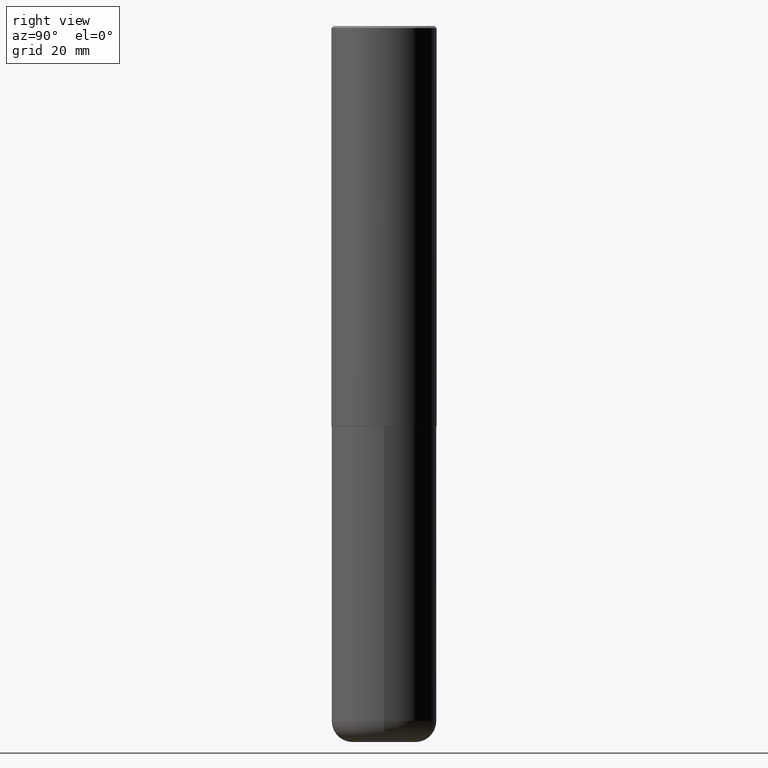
[diagram: clean part render]
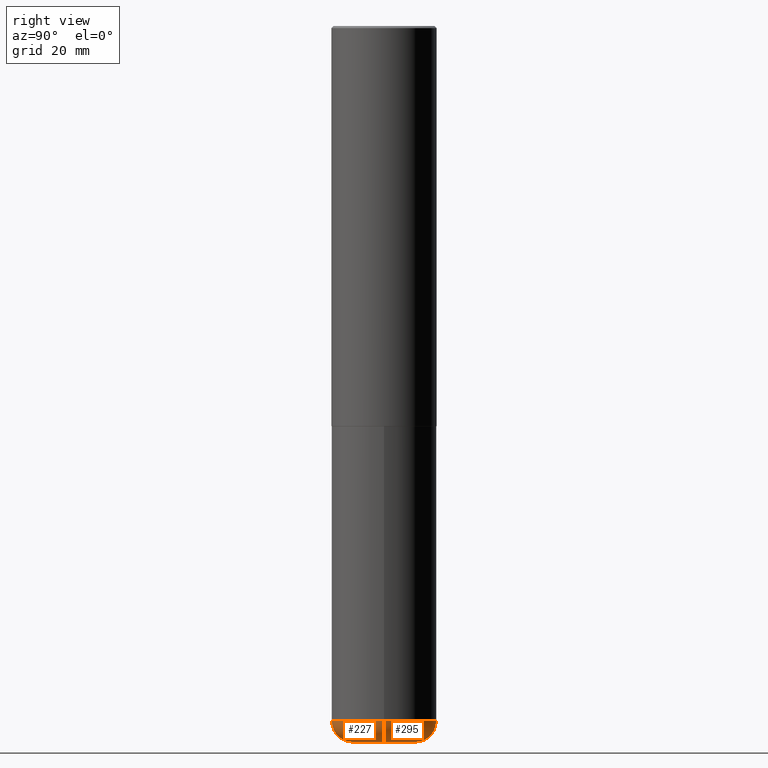
[diagram: same view with one multi-face feature highlighted, each face labeled with its STEP entity id]
A machine part, right view. The highlighted faces form ONE feature: a constant-radius fillet chain: 2 tangent blend faces with common blend radius 5.0013 mm. The faces share edges in the B-rep.
Their STEP definitions:
[1] entity #295 (Torus):
#11 = ORIENTED_EDGE ( 'NONE', *, *, #386, .F. ) ;
#14 = EDGE_LOOP ( 'NONE', ( #294, #394, #11, #298 ) ) ;
#69 = EDGE_CURVE ( 'NONE', #352, #141, #272, .T. ) ;
#91 = CARTESIAN_POINT ( 'NONE',  ( 1.588576536497864771E-28, -2.268066277712507367E-14, -6.495999999999999552 ) ) ;
#98 = CIRCLE ( 'NONE', #327, 0.4921499999999999764 ) ;
#101 = EDGE_CURVE ( 'NONE', #352, #109, #187, .T. ) ;
#108 = CIRCLE ( 'NONE', #119, 0.1968999999999995754 ) ;
#109 = VERTEX_POINT ( 'NONE', #209 ) ;
#115 = CARTESIAN_POINT ( 'NONE',  ( 1.588576536497864771E-28, -2.268066277712507367E-14, -6.495999999999999552 ) ) ;
#119 = AXIS2_PLACEMENT_3D ( 'NONE', #204, #180, #278 ) ;
#141 = VERTEX_POINT ( 'NONE', #268 ) ;
#145 = FACE_OUTER_BOUND ( 'NONE', #14, .T. ) ;
#159 = AXIS2_PLACEMENT_3D ( 'NONE', #301, #367, #208 ) ;
#174 = VERTEX_POINT ( 'NONE', #303 ) ;
#178 = DIRECTION ( 'NONE',  ( 1.000000000000000000, -6.982962677686270655E-15, 0.000000000000000000 ) ) ;
#180 = DIRECTION ( 'NONE',  ( 7.105427357601001859E-15, 1.000000000000000000, -3.491481338843145583E-15 ) ) ;
#187 = CIRCLE ( 'NONE', #159, 0.2952500000000000124 ) ;
#191 = AXIS2_PLACEMENT_3D ( 'NONE', #91, #357, #362 ) ;
#201 = CARTESIAN_POINT ( 'NONE',  ( 0.2952499999999999569, -2.474238250771194590E-14, -6.495999999999999552 ) ) ;
#204 = CARTESIAN_POINT ( 'NONE',  ( -0.2952499999999999569, -2.058278534979337620E-14, -6.495999999999999552 ) ) ;
#208 = DIRECTION ( 'NONE',  ( 1.000000000000000000, -6.982962677686273021E-15, 0.000000000000000000 ) ) ;
#209 = CARTESIAN_POINT ( 'NONE',  ( -0.2952500000000000124, -2.022699236424666989E-14, -6.692899999999998961 ) ) ;
#212 = DIRECTION ( 'NONE',  ( 1.000000000000000000, -6.982962677686265922E-15, 0.000000000000000000 ) ) ;
#268 = CARTESIAN_POINT ( 'NONE',  ( 0.4921499999999997543, -2.611732785894836787E-14, -6.495999999999999552 ) ) ;
#272 = CIRCLE ( 'NONE', #356, 0.1968999999999995754 ) ;
#278 = DIRECTION ( 'NONE',  ( -1.000000000000000000, 7.105427357601008170E-15, 0.000000000000000000 ) ) ;
#284 = TOROIDAL_SURFACE ( 'NONE', #191, 0.2952499999999999569, 0.1968999999999996031 ) ;
#294 = ORIENTED_EDGE ( 'NONE', *, *, #101, .T. ) ;
#295 = ADVANCED_FACE ( 'NONE', ( #145 ), #284, .T. ) ;
#298 = ORIENTED_EDGE ( 'NONE', *, *, #69, .F. ) ;
#301 = CARTESIAN_POINT ( 'NONE',  ( 1.636727817291649742E-28, -2.336813545274328465E-14, -6.692899999999998961 ) ) ;
#303 = CARTESIAN_POINT ( 'NONE',  ( -0.4921499999999997543, -1.918372670308173998E-14, -6.495999999999999552 ) ) ;
#327 = AXIS2_PLACEMENT_3D ( 'NONE', #115, #364, #212 ) ;
#348 = EDGE_CURVE ( 'NONE', #109, #174, #108, .T. ) ;
#352 = VERTEX_POINT ( 'NONE', #399 ) ;
#356 = AXIS2_PLACEMENT_3D ( 'NONE', #201, #363, #178 ) ;
#357 = DIRECTION ( 'NONE',  ( -2.445468806185136597E-29, 3.491481338843145583E-15, 1.000000000000000000 ) ) ;
#362 = DIRECTION ( 'NONE',  ( 1.000000000000000000, -6.982962677686264344E-15, 4.883557194083111780E-29 ) ) ;
#363 = DIRECTION ( 'NONE',  ( -6.982962677686266711E-15, -1.000000000000000000, 3.491481338843145583E-15 ) ) ;
#364 = DIRECTION ( 'NONE',  ( -2.445468806185136597E-29, 3.491481338843145583E-15, 1.000000000000000000 ) ) ;
#367 = DIRECTION ( 'NONE',  ( -2.445468806185136597E-29, 3.491481338843145583E-15, 1.000000000000000000 ) ) ;
#386 = EDGE_CURVE ( 'NONE', #141, #174, #98, .T. ) ;
#394 = ORIENTED_EDGE ( 'NONE', *, *, #348, .T. ) ;
#399 = CARTESIAN_POINT ( 'NONE',  ( 0.2952500000000000124, -2.542985518333015688E-14, -6.692899999999998961 ) ) ;
[2] entity #227 (Torus):
#5 = CIRCLE ( 'NONE', #406, 0.2952500000000000124 ) ;
#13 = CARTESIAN_POINT ( 'NONE',  ( 1.636727817291649742E-28, -2.336813545274328465E-14, -6.692899999999998961 ) ) ;
#32 = DIRECTION ( 'NONE',  ( 1.000000000000000000, -6.982962677686264344E-15, 4.883557194083111780E-29 ) ) ;
#38 = DIRECTION ( 'NONE',  ( -2.445468806185136597E-29, 3.491481338843145583E-15, 1.000000000000000000 ) ) ;
#66 = CARTESIAN_POINT ( 'NONE',  ( 1.588576536497864771E-28, -2.268066277712507367E-14, -6.495999999999999552 ) ) ;
#69 = EDGE_CURVE ( 'NONE', #352, #141, #272, .T. ) ;
#70 = ORIENTED_EDGE ( 'NONE', *, *, #69, .T. ) ;
#82 = EDGE_LOOP ( 'NONE', ( #361, #160, #70, #282 ) ) ;
#108 = CIRCLE ( 'NONE', #119, 0.1968999999999995754 ) ;
#109 = VERTEX_POINT ( 'NONE', #209 ) ;
#119 = AXIS2_PLACEMENT_3D ( 'NONE', #204, #180, #278 ) ;
#132 = AXIS2_PLACEMENT_3D ( 'NONE', #66, #38, #222 ) ;
#141 = VERTEX_POINT ( 'NONE', #268 ) ;
#160 = ORIENTED_EDGE ( 'NONE', *, *, #179, .T. ) ;
#162 = FACE_OUTER_BOUND ( 'NONE', #82, .T. ) ;
#174 = VERTEX_POINT ( 'NONE', #303 ) ;
#176 = CARTESIAN_POINT ( 'NONE',  ( 1.588576536497864771E-28, -2.268066277712507367E-14, -6.495999999999999552 ) ) ;
#178 = DIRECTION ( 'NONE',  ( 1.000000000000000000, -6.982962677686270655E-15, 0.000000000000000000 ) ) ;
#179 = EDGE_CURVE ( 'NONE', #109, #352, #5, .T. ) ;
#180 = DIRECTION ( 'NONE',  ( 7.105427357601001859E-15, 1.000000000000000000, -3.491481338843145583E-15 ) ) ;
#201 = CARTESIAN_POINT ( 'NONE',  ( 0.2952499999999999569, -2.474238250771194590E-14, -6.495999999999999552 ) ) ;
#204 = CARTESIAN_POINT ( 'NONE',  ( -0.2952499999999999569, -2.058278534979337620E-14, -6.495999999999999552 ) ) ;
#209 = CARTESIAN_POINT ( 'NONE',  ( -0.2952500000000000124, -2.022699236424666989E-14, -6.692899999999998961 ) ) ;
#222 = DIRECTION ( 'NONE',  ( 1.000000000000000000, -6.982962677686265922E-15, 0.000000000000000000 ) ) ;
#226 = TOROIDAL_SURFACE ( 'NONE', #372, 0.2952499999999999569, 0.1968999999999996031 ) ;
#227 = ADVANCED_FACE ( 'NONE', ( #162 ), #226, .T. ) ;
#234 = DIRECTION ( 'NONE',  ( -2.445468806185136597E-29, 3.491481338843145583E-15, 1.000000000000000000 ) ) ;
#258 = CIRCLE ( 'NONE', #132, 0.4921499999999999764 ) ;
#268 = CARTESIAN_POINT ( 'NONE',  ( 0.4921499999999997543, -2.611732785894836787E-14, -6.495999999999999552 ) ) ;
#272 = CIRCLE ( 'NONE', #356, 0.1968999999999995754 ) ;
#278 = DIRECTION ( 'NONE',  ( -1.000000000000000000, 7.105427357601008170E-15, 0.000000000000000000 ) ) ;
#282 = ORIENTED_EDGE ( 'NONE', *, *, #290, .F. ) ;
#290 = EDGE_CURVE ( 'NONE', #174, #141, #258, .T. ) ;
#303 = CARTESIAN_POINT ( 'NONE',  ( -0.4921499999999997543, -1.918372670308173998E-14, -6.495999999999999552 ) ) ;
#348 = EDGE_CURVE ( 'NONE', #109, #174, #108, .T. ) ;
#352 = VERTEX_POINT ( 'NONE', #399 ) ;
#356 = AXIS2_PLACEMENT_3D ( 'NONE', #201, #363, #178 ) ;
#361 = ORIENTED_EDGE ( 'NONE', *, *, #348, .F. ) ;
#363 = DIRECTION ( 'NONE',  ( -6.982962677686266711E-15, -1.000000000000000000, 3.491481338843145583E-15 ) ) ;
#372 = AXIS2_PLACEMENT_3D ( 'NONE', #176, #234, #32 ) ;
#391 = DIRECTION ( 'NONE',  ( -2.445468806185136597E-29, 3.491481338843145583E-15, 1.000000000000000000 ) ) ;
#398 = DIRECTION ( 'NONE',  ( 1.000000000000000000, -6.982962677686273021E-15, 0.000000000000000000 ) ) ;
#399 = CARTESIAN_POINT ( 'NONE',  ( 0.2952500000000000124, -2.542985518333015688E-14, -6.692899999999998961 ) ) ;
#406 = AXIS2_PLACEMENT_3D ( 'NONE', #13, #391, #398 ) ;